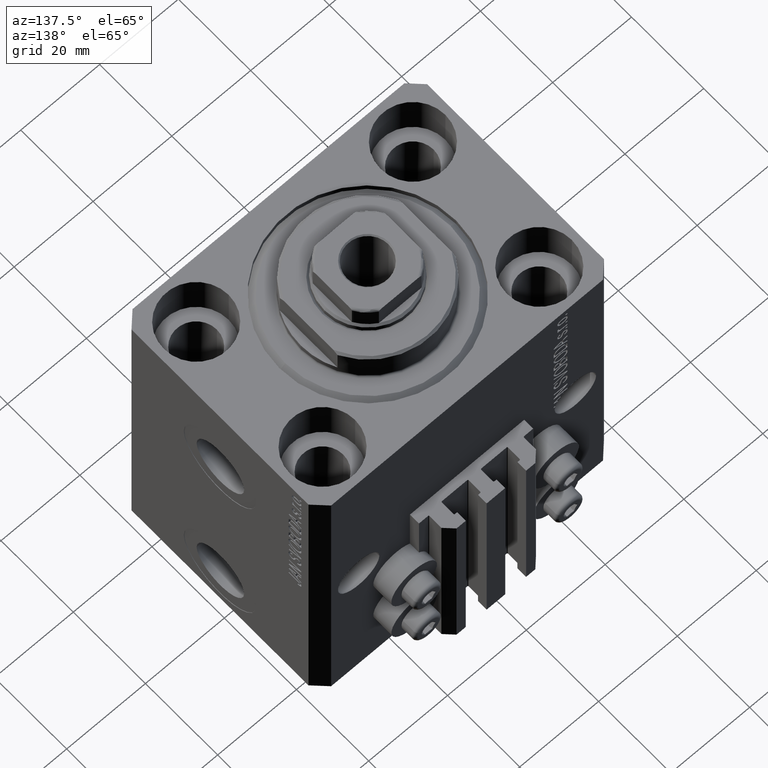
[diagram: clean part render]
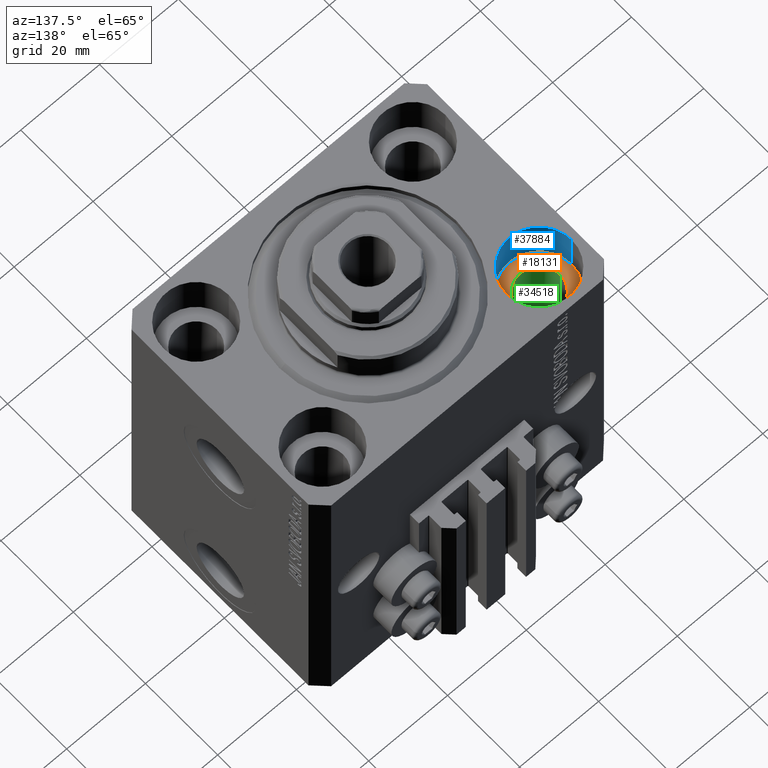
[diagram: same view with three faces highlighted in distinct colors, each labeled with its STEP entity id]
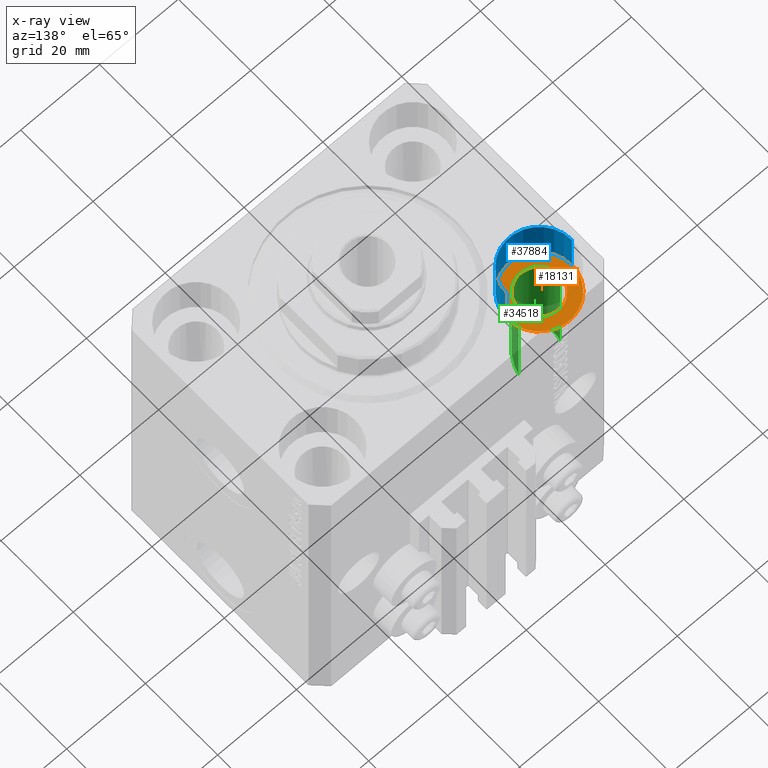
[diagram: x-ray of the same camera — body ghosted, the three highlighted faces saturated]
A machine part, auxiliary view with three faces highlighted in distinct colors.
The next image is the same camera in x-ray (body ghosted, the three faces saturated) — at least one of them is partly hidden behind the body in this view.
Their STEP definitions:

[orange] entity #18131 — the highlighted planar face has unit normal (0, 0, 1).
#2550 = AXIS2_PLACEMENT_3D ( 'NONE', #36852, #15047, #22174 ) ;
#3092 = CARTESIAN_POINT ( 'NONE',  ( -27.50000000000000355, 17.50000000000000000, -11.00000000000000000 ) ) ;
#3932 = FACE_BOUND ( 'NONE', #45932, .T. ) ;
#4111 = CARTESIAN_POINT ( 'NONE',  ( -35.75000000000000711, 17.50000000000000000, -11.00000000000000000 ) ) ;
#4153 = FACE_OUTER_BOUND ( 'NONE', #42458, .T. ) ;
#4234 = DIRECTION ( 'NONE',  ( 0.000000000000000000, 0.000000000000000000, 1.000000000000000000 ) ) ;
#8748 = DIRECTION ( 'NONE',  ( 0.000000000000000000, 0.000000000000000000, 1.000000000000000000 ) ) ;
#9081 = CARTESIAN_POINT ( 'NONE',  ( -27.50000000000000355, 17.50000000000000000, -11.00000000000000000 ) ) ;
#10083 = CARTESIAN_POINT ( 'NONE',  ( -22.25000000000000355, 17.50000000000000000, -11.00000000000000000 ) ) ;
#10903 = CARTESIAN_POINT ( 'NONE',  ( -27.50000000000000355, 17.50000000000000000, -11.00000000000000000 ) ) ;
#11832 = CARTESIAN_POINT ( 'NONE',  ( -27.50000000000000355, 17.50000000000000000, -11.00000000000000000 ) ) ;
#12168 = DIRECTION ( 'NONE',  ( 1.000000000000000000, 0.000000000000000000, 0.000000000000000000 ) ) ;
#13237 = VERTEX_POINT ( 'NONE', #14206 ) ;
#13403 = CIRCLE ( 'NONE', #25522, 8.250000000000000000 ) ;
#14206 = CARTESIAN_POINT ( 'NONE',  ( -32.75000000000000000, 17.50000000000000000, -11.00000000000000000 ) ) ;
#14863 = EDGE_CURVE ( 'NONE', #19140, #27245, #28823, .T. ) ;
#15047 = DIRECTION ( 'NONE',  ( 0.000000000000000000, 0.000000000000000000, 1.000000000000000000 ) ) ;
#15860 = DIRECTION ( 'NONE',  ( 1.000000000000000000, 0.000000000000000000, 0.000000000000000000 ) ) ;
#16595 = ORIENTED_EDGE ( 'NONE', *, *, #23049, .T. ) ;
#16676 = AXIS2_PLACEMENT_3D ( 'NONE', #10903, #25358, #39787 ) ;
#18131 = ADVANCED_FACE ( 'NONE', ( #3932, #4153 ), #40618, .T. ) ;
#19140 = VERTEX_POINT ( 'NONE', #43684 ) ;
#22174 = DIRECTION ( 'NONE',  ( 1.000000000000000000, 0.000000000000000000, -0.000000000000000000 ) ) ;
#23049 = EDGE_CURVE ( 'NONE', #27245, #19140, #13403, .T. ) ;
#23122 = ORIENTED_EDGE ( 'NONE', *, *, #27994, .F. ) ;
#23544 = DIRECTION ( 'NONE',  ( 0.000000000000000000, 0.000000000000000000, 1.000000000000000000 ) ) ;
#25358 = DIRECTION ( 'NONE',  ( 0.000000000000000000, 0.000000000000000000, 1.000000000000000000 ) ) ;
#25522 = AXIS2_PLACEMENT_3D ( 'NONE', #11832, #8748, #15860 ) ;
#27245 = VERTEX_POINT ( 'NONE', #4111 ) ;
#27994 = EDGE_CURVE ( 'NONE', #30059, #13237, #33847, .T. ) ;
#28823 = CIRCLE ( 'NONE', #35652, 8.250000000000000000 ) ;
#30059 = VERTEX_POINT ( 'NONE', #10083 ) ;
#33847 = CIRCLE ( 'NONE', #39913, 5.250000000000000888 ) ;
#35652 = AXIS2_PLACEMENT_3D ( 'NONE', #9081, #23544, #12168 ) ;
#35803 = EDGE_CURVE ( 'NONE', #13237, #30059, #37101, .T. ) ;
#36852 = CARTESIAN_POINT ( 'NONE',  ( -27.50000000000000355, 17.50000000000000000, -11.00000000000000000 ) ) ;
#36963 = ORIENTED_EDGE ( 'NONE', *, *, #14863, .T. ) ;
#37101 = CIRCLE ( 'NONE', #16676, 5.250000000000000888 ) ;
#39785 = DIRECTION ( 'NONE',  ( 1.000000000000000000, 0.000000000000000000, 0.000000000000000000 ) ) ;
#39787 = DIRECTION ( 'NONE',  ( 1.000000000000000000, 0.000000000000000000, 0.000000000000000000 ) ) ;
#39913 = AXIS2_PLACEMENT_3D ( 'NONE', #3092, #4234, #39785 ) ;
#40618 = PLANE ( 'NONE',  #2550 ) ;
#41461 = ORIENTED_EDGE ( 'NONE', *, *, #35803, .F. ) ;
#42458 = EDGE_LOOP ( 'NONE', ( #36963, #16595 ) ) ;
#43684 = CARTESIAN_POINT ( 'NONE',  ( -19.25000000000000355, 17.50000000000000000, -11.00000000000000000 ) ) ;
#45932 = EDGE_LOOP ( 'NONE', ( #23122, #41461 ) ) ;

[blue] entity #37884 — the highlighted cylindrical surface (partial cylindrical patch) has radius 8.25 mm, axis along (0, 0, 1).
#2753 = ORIENTED_EDGE ( 'NONE', *, *, #23049, .F. ) ;
#3162 = ORIENTED_EDGE ( 'NONE', *, *, #19889, .T. ) ;
#4111 = CARTESIAN_POINT ( 'NONE',  ( -35.75000000000000711, 17.50000000000000000, -11.00000000000000000 ) ) ;
#4728 = CYLINDRICAL_SURFACE ( 'NONE', #5424, 8.250000000000000000 ) ;
#5424 = AXIS2_PLACEMENT_3D ( 'NONE', #14696, #40481, #36714 ) ;
#6198 = VECTOR ( 'NONE', #15993, 1000.000000000000000 ) ;
#7652 = CARTESIAN_POINT ( 'NONE',  ( -35.75000000000000711, 17.50000000000000000, 0.000000000000000000 ) ) ;
#8748 = DIRECTION ( 'NONE',  ( 0.000000000000000000, 0.000000000000000000, 1.000000000000000000 ) ) ;
#10275 = EDGE_CURVE ( 'NONE', #19140, #15782, #19985, .T. ) ;
#10434 = DIRECTION ( 'NONE',  ( 0.000000000000000000, 0.000000000000000000, 1.000000000000000000 ) ) ;
#11832 = CARTESIAN_POINT ( 'NONE',  ( -27.50000000000000355, 17.50000000000000000, -11.00000000000000000 ) ) ;
#13295 = AXIS2_PLACEMENT_3D ( 'NONE', #21561, #10434, #18681 ) ;
#13403 = CIRCLE ( 'NONE', #25522, 8.250000000000000000 ) ;
#13581 = DIRECTION ( 'NONE',  ( -0.000000000000000000, -0.000000000000000000, 1.000000000000000000 ) ) ;
#14696 = CARTESIAN_POINT ( 'NONE',  ( -27.50000000000000355, 17.50000000000000000, -11.00000000000000000 ) ) ;
#15782 = VERTEX_POINT ( 'NONE', #19509 ) ;
#15860 = DIRECTION ( 'NONE',  ( 1.000000000000000000, 0.000000000000000000, 0.000000000000000000 ) ) ;
#15993 = DIRECTION ( 'NONE',  ( -0.000000000000000000, -0.000000000000000000, 1.000000000000000000 ) ) ;
#17839 = CIRCLE ( 'NONE', #13295, 8.250000000000000000 ) ;
#18681 = DIRECTION ( 'NONE',  ( 1.000000000000000000, 0.000000000000000000, 0.000000000000000000 ) ) ;
#19140 = VERTEX_POINT ( 'NONE', #43684 ) ;
#19509 = CARTESIAN_POINT ( 'NONE',  ( -19.25000000000000355, 17.50000000000000000, 0.000000000000000000 ) ) ;
#19889 = EDGE_CURVE ( 'NONE', #34424, #15782, #17839, .T. ) ;
#19985 = LINE ( 'NONE', #20214, #43160 ) ;
#20214 = CARTESIAN_POINT ( 'NONE',  ( -19.25000000000000355, 17.50000000000000000, -11.00000000000000000 ) ) ;
#20342 = EDGE_LOOP ( 'NONE', ( #2753, #41787, #3162, #28211 ) ) ;
#21561 = CARTESIAN_POINT ( 'NONE',  ( -27.50000000000000355, 17.50000000000000000, 0.000000000000000000 ) ) ;
#23049 = EDGE_CURVE ( 'NONE', #27245, #19140, #13403, .T. ) ;
#23100 = LINE ( 'NONE', #37566, #6198 ) ;
#25522 = AXIS2_PLACEMENT_3D ( 'NONE', #11832, #8748, #15860 ) ;
#27245 = VERTEX_POINT ( 'NONE', #4111 ) ;
#28211 = ORIENTED_EDGE ( 'NONE', *, *, #10275, .F. ) ;
#34424 = VERTEX_POINT ( 'NONE', #7652 ) ;
#36714 = DIRECTION ( 'NONE',  ( 1.000000000000000000, 0.000000000000000000, 0.000000000000000000 ) ) ;
#37566 = CARTESIAN_POINT ( 'NONE',  ( -35.75000000000000711, 17.50000000000000000, -11.00000000000000000 ) ) ;
#37884 = ADVANCED_FACE ( 'NONE', ( #40033 ), #4728, .F. ) ;
#40033 = FACE_OUTER_BOUND ( 'NONE', #20342, .T. ) ;
#40481 = DIRECTION ( 'NONE',  ( -0.000000000000000000, -0.000000000000000000, 1.000000000000000000 ) ) ;
#41787 = ORIENTED_EDGE ( 'NONE', *, *, #46690, .T. ) ;
#43160 = VECTOR ( 'NONE', #13581, 1000.000000000000000 ) ;
#43684 = CARTESIAN_POINT ( 'NONE',  ( -19.25000000000000355, 17.50000000000000000, -11.00000000000000000 ) ) ;
#46690 = EDGE_CURVE ( 'NONE', #27245, #34424, #23100, .T. ) ;

[green] entity #34518 — the highlighted cylindrical surface (edge-blend (fillet) strip) has radius 5.25 mm, axis along (0, 0, 1).
#865 = DIRECTION ( 'NONE',  ( -0.000000000000000000, -0.000000000000000000, 1.000000000000000000 ) ) ;
#1377 = CARTESIAN_POINT ( 'NONE',  ( -32.75000000000000000, 17.50000000000000000, -40.00000000000000711 ) ) ;
#1479 = CARTESIAN_POINT ( 'NONE',  ( -27.50000000000000355, 17.50000000000000000, -80.00000000000000000 ) ) ;
#2220 = CARTESIAN_POINT ( 'NONE',  ( -22.25000000000000000, 7.000000000000006217, -29.50000000000001066 ) ) ;
#3268 = ORIENTED_EDGE ( 'NONE', *, *, #15884, .T. ) ;
#5123 = VECTOR ( 'NONE', #34702, 1000.000000000000000 ) ;
#5806 = CARTESIAN_POINT ( 'NONE',  ( -32.75000000000000000, 17.50000000000000000, -80.00000000000000000 ) ) ;
#6359 = VERTEX_POINT ( 'NONE', #1377 ) ;
#7644 = EDGE_LOOP ( 'NONE', ( #3268, #38474, #12421, #24830 ) ) ;
#8668 = CARTESIAN_POINT ( 'NONE',  ( -22.25000000000000355, 17.50000000000000000, -80.00000000000000000 ) ) ;
#9514 = DIRECTION ( 'NONE',  ( -0.000000000000000000, -0.000000000000000000, 1.000000000000000000 ) ) ;
#10083 = CARTESIAN_POINT ( 'NONE',  ( -22.25000000000000355, 17.50000000000000000, -11.00000000000000000 ) ) ;
#10903 = CARTESIAN_POINT ( 'NONE',  ( -27.50000000000000355, 17.50000000000000000, -11.00000000000000000 ) ) ;
#12421 = ORIENTED_EDGE ( 'NONE', *, *, #35803, .T. ) ;
#13112 = CARTESIAN_POINT ( 'NONE',  ( -32.75000000000000000, 7.000000000000006217, -29.50000000000001066 ) ) ;
#13237 = VERTEX_POINT ( 'NONE', #14206 ) ;
#14206 = CARTESIAN_POINT ( 'NONE',  ( -32.75000000000000000, 17.50000000000000000, -11.00000000000000000 ) ) ;
#15775 = VERTEX_POINT ( 'NONE', #26871 ) ;
#15884 = EDGE_CURVE ( 'NONE', #15775, #6359, #30174, .T. ) ;
#16676 = AXIS2_PLACEMENT_3D ( 'NONE', #10903, #25358, #39787 ) ;
#16936 = LINE ( 'NONE', #5806, #5123 ) ;
#19099 = LINE ( 'NONE', #8668, #28840 ) ;
#24428 = EDGE_CURVE ( 'NONE', #6359, #13237, #16936, .T. ) ;
#24830 = ORIENTED_EDGE ( 'NONE', *, *, #36224, .F. ) ;
#25358 = DIRECTION ( 'NONE',  ( 0.000000000000000000, 0.000000000000000000, 1.000000000000000000 ) ) ;
#26871 = CARTESIAN_POINT ( 'NONE',  ( -22.25000000000000000, 17.50000000000000000, -40.00000000000000711 ) ) ;
#27067 = DIRECTION ( 'NONE',  ( 1.000000000000000000, 0.000000000000000000, 0.000000000000000000 ) ) ;
#27306 = FACE_OUTER_BOUND ( 'NONE', #7644, .T. ) ;
#28840 = VECTOR ( 'NONE', #865, 1000.000000000000000 ) ;
#30059 = VERTEX_POINT ( 'NONE', #10083 ) ;
#30174 =( BOUNDED_CURVE ( )  B_SPLINE_CURVE ( 3, ( #31122, #2220, #13112, #42720 ),
 .UNSPECIFIED., .F., .F. ) 
 B_SPLINE_CURVE_WITH_KNOTS ( ( 4, 4 ),
 ( 4.712388980384689674, 7.853981633974482790 ),
 .UNSPECIFIED. ) 
 CURVE ( )  GEOMETRIC_REPRESENTATION_ITEM ( )  RATIONAL_B_SPLINE_CURVE ( ( 1.000000000000000000, 0.3333333333333333703, 0.3333333333333333703, 1.000000000000000000 ) ) 
 REPRESENTATION_ITEM ( '' )  );
#31122 = CARTESIAN_POINT ( 'NONE',  ( -22.25000000000000000, 17.50000000000000000, -40.00000000000000711 ) ) ;
#34518 = ADVANCED_FACE ( 'NONE', ( #27306 ), #45061, .F. ) ;
#34702 = DIRECTION ( 'NONE',  ( -0.000000000000000000, -0.000000000000000000, 1.000000000000000000 ) ) ;
#35803 = EDGE_CURVE ( 'NONE', #13237, #30059, #37101, .T. ) ;
#36224 = EDGE_CURVE ( 'NONE', #15775, #30059, #19099, .T. ) ;
#37101 = CIRCLE ( 'NONE', #16676, 5.250000000000000888 ) ;
#37862 = AXIS2_PLACEMENT_3D ( 'NONE', #1479, #9514, #27067 ) ;
#38474 = ORIENTED_EDGE ( 'NONE', *, *, #24428, .T. ) ;
#39787 = DIRECTION ( 'NONE',  ( 1.000000000000000000, 0.000000000000000000, 0.000000000000000000 ) ) ;
#42720 = CARTESIAN_POINT ( 'NONE',  ( -32.75000000000000000, 17.50000000000000000, -40.00000000000000711 ) ) ;
#45061 = CYLINDRICAL_SURFACE ( 'NONE', #37862, 5.250000000000000888 ) ;